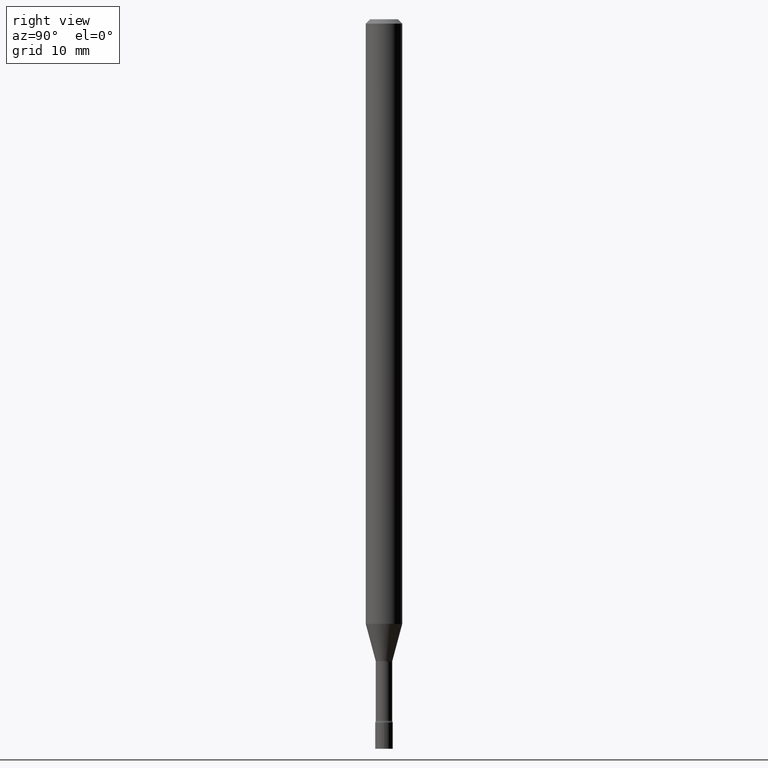
[diagram: clean part render]
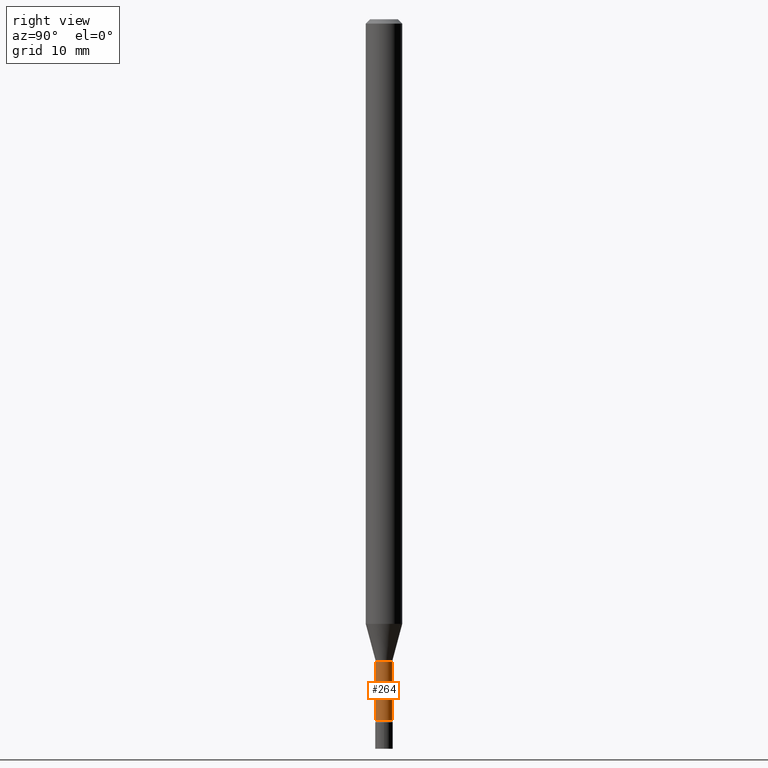
[diagram: same view with one face highlighted and labeled with its STEP entity id]
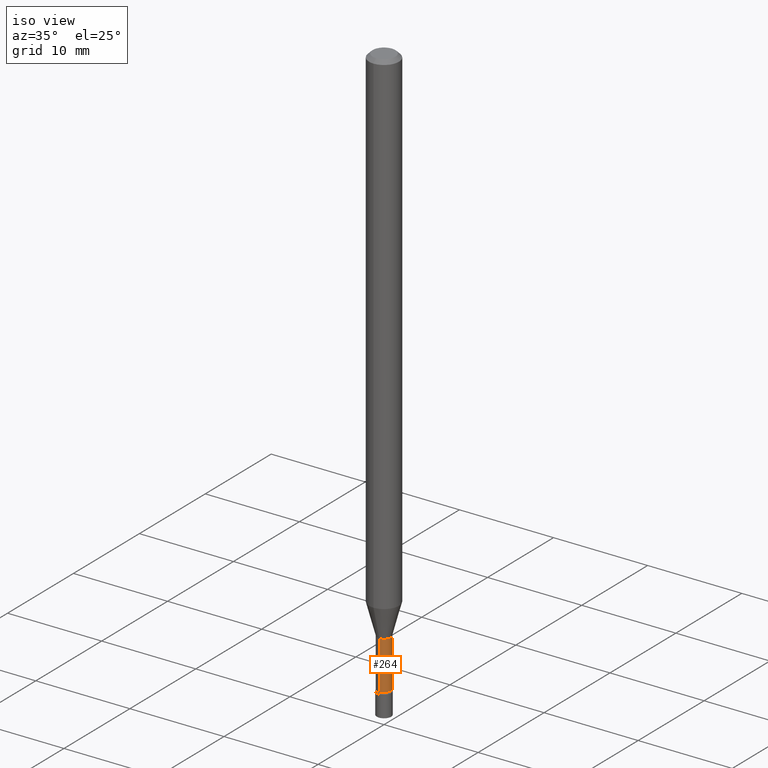
[diagram: same view with one face highlighted and labeled with its STEP entity id]
A machine part, right view. The second image highlights one B-rep face of the part: STEP entity #264.
A second angle (iso view) of the same face is appended — the face is thin or edge-on in the first view.
In plain terms, the highlighted cylindrical surface (edge-blend (fillet) strip) has radius 0.7163 mm, axis along (-0, 0, 1).
Its self-contained STEP definition (entity closure, byte-faithful):
#40 = DIRECTION ( 'NONE',  ( -2.445511190739736583E-29, 3.491420641748579346E-15, 1.000000000000000000 ) ) ;
#41 = FACE_OUTER_BOUND ( 'NONE', #261, .T. ) ;
#45 = DIRECTION ( 'NONE',  ( -2.445511190739736863E-29, 3.491420641748579346E-15, 1.000000000000000000 ) ) ;
#60 = VECTOR ( 'NONE', #45, 39.37007874015748143 ) ;
#64 = ORIENTED_EDGE ( 'NONE', *, *, #444, .F. ) ;
#66 = VERTEX_POINT ( 'NONE', #119 ) ;
#76 = LINE ( 'NONE', #476, #478 ) ;
#77 = CARTESIAN_POINT ( 'NONE',  ( 0.000000000000000000, 0.000000000000000000, 0.000000000000000000 ) ) ;
#81 = AXIS2_PLACEMENT_3D ( 'NONE', #442, #40, #278 ) ;
#119 = CARTESIAN_POINT ( 'NONE',  ( -1.969195475106987639E-16, -0.02820000000000767726, -2.201974787463810923 ) ) ;
#134 = AXIS2_PLACEMENT_3D ( 'NONE', #77, #318, #354 ) ;
#180 = ORIENTED_EDGE ( 'NONE', *, *, #422, .T. ) ;
#196 = CARTESIAN_POINT ( 'NONE',  ( 2.003730514844069441E-16, 0.02819999999999230067, -2.201974787463810923 ) ) ;
#197 = CYLINDRICAL_SURFACE ( 'NONE', #134, 0.02819999999999999590 ) ;
#200 = CARTESIAN_POINT ( 'NONE',  ( 2.067679361062481029E-16, 0.02819999999999161719, -2.402875394747777449 ) ) ;
#234 = CARTESIAN_POINT ( 'NONE',  ( 5.384953984469503367E-29, -7.688020225561090529E-15, -2.201974787463810923 ) ) ;
#238 = ORIENTED_EDGE ( 'NONE', *, *, #494, .F. ) ;
#247 = ORIENTED_EDGE ( 'NONE', *, *, #456, .T. ) ;
#261 = EDGE_LOOP ( 'NONE', ( #180, #247, #238, #64 ) ) ;
#264 = ADVANCED_FACE ( 'NONE', ( #41 ), #197, .T. ) ;
#278 = DIRECTION ( 'NONE',  ( -6.982962677686265133E-15, -1.000000000000000000, 0.000000000000000000 ) ) ;
#306 = CARTESIAN_POINT ( 'NONE',  ( -1.969195475106939815E-16, -0.02820000000000839196, -2.402875394747777449 ) ) ;
#317 = CARTESIAN_POINT ( 'NONE',  ( 2.003730514843481987E-16, 0.02819999999999999590, -9.845806209730992005E-17 ) ) ;
#318 = DIRECTION ( 'NONE',  ( -2.445511190739736583E-29, 3.491420641748579346E-15, 1.000000000000000000 ) ) ;
#323 = DIRECTION ( 'NONE',  ( -6.982962677686265133E-15, -1.000000000000000000, 0.000000000000000000 ) ) ;
#354 = DIRECTION ( 'NONE',  ( -6.982962677686265922E-15, -1.000000000000000000, 3.491420641748579346E-15 ) ) ;
#356 = DIRECTION ( 'NONE',  ( -2.445511190739736583E-29, 3.491420641748579346E-15, 1.000000000000000000 ) ) ;
#363 = VERTEX_POINT ( 'NONE', #306 ) ;
#396 = CIRCLE ( 'NONE', #81, 0.02820000000000000631 ) ;
#401 = DIRECTION ( 'NONE',  ( -2.445511190739736863E-29, 3.491420641748579346E-15, 1.000000000000000000 ) ) ;
#404 = LINE ( 'NONE', #317, #60 ) ;
#415 = CIRCLE ( 'NONE', #428, 0.02819999999999998896 ) ;
#422 = EDGE_CURVE ( 'NONE', #363, #434, #396, .T. ) ;
#428 = AXIS2_PLACEMENT_3D ( 'NONE', #234, #356, #323 ) ;
#434 = VERTEX_POINT ( 'NONE', #200 ) ;
#442 = CARTESIAN_POINT ( 'NONE',  ( 5.876258667808851450E-29, -8.389448752772155933E-15, -2.402875394747777449 ) ) ;
#444 = EDGE_CURVE ( 'NONE', #363, #66, #76, .T. ) ;
#456 = EDGE_CURVE ( 'NONE', #434, #495, #404, .T. ) ;
#476 = CARTESIAN_POINT ( 'NONE',  ( -1.969195475107526777E-16, -0.02819999999999999590, 9.845806209730992005E-17 ) ) ;
#478 = VECTOR ( 'NONE', #401, 39.37007874015748143 ) ;
#494 = EDGE_CURVE ( 'NONE', #66, #495, #415, .T. ) ;
#495 = VERTEX_POINT ( 'NONE', #196 ) ;